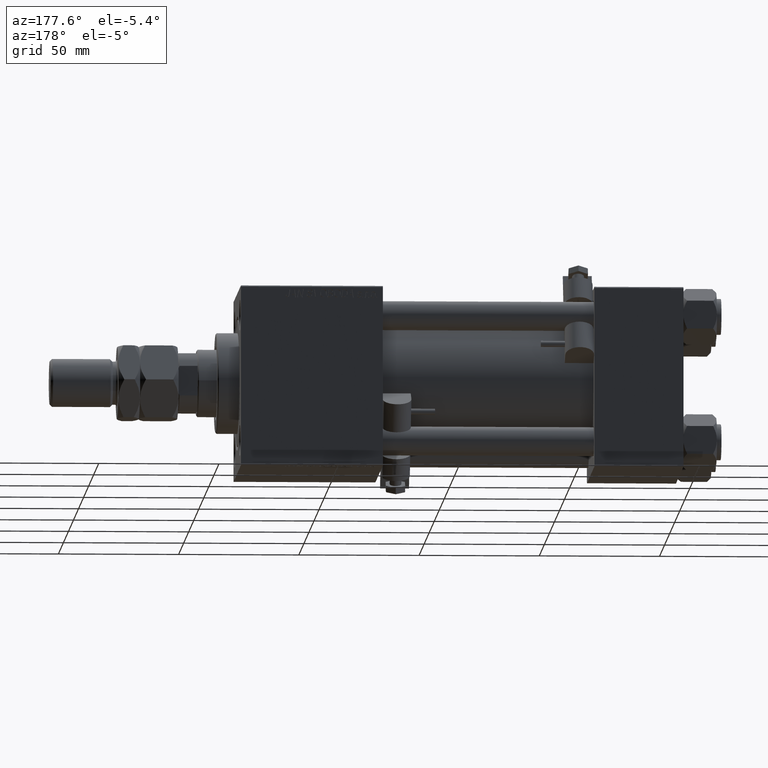
[diagram: clean part render]
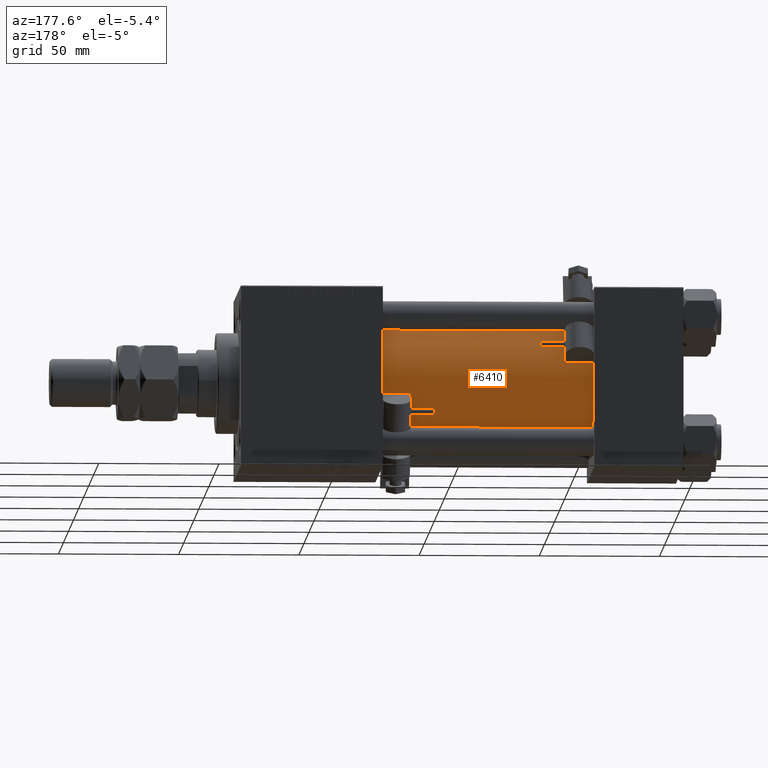
[diagram: same view with one face highlighted and labeled with its STEP entity id]
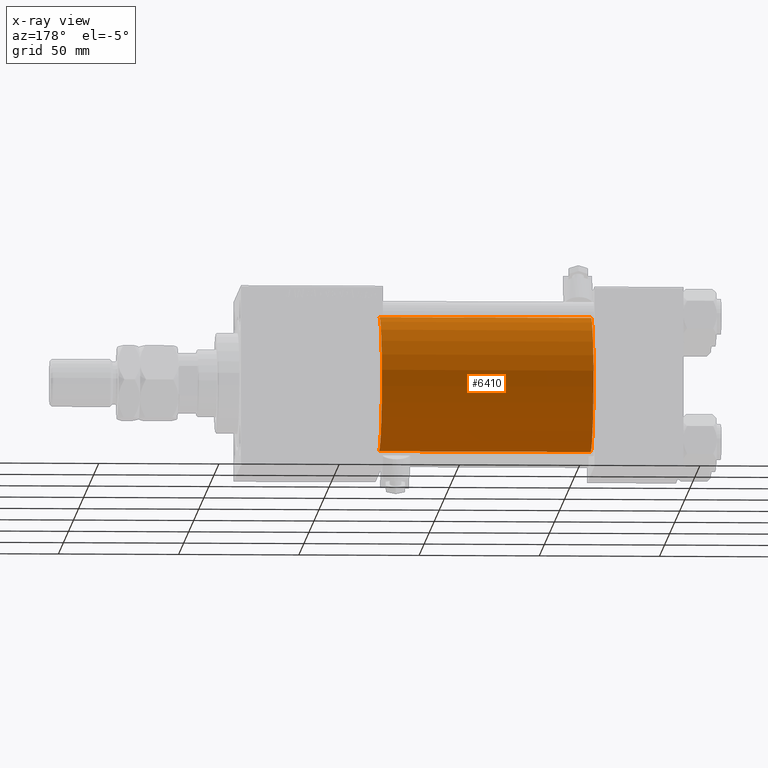
[diagram: x-ray of the same camera — body ghosted, the highlighted face saturated]
A machine part, auxiliary view. The second image highlights one B-rep face of the part: STEP entity #6410.
The next image is the same camera in x-ray: the body ghosted, the highlighted face saturated — about 0% of this face is hidden behind the body in this view.
In plain terms, the highlighted cylindrical surface (partial cylindrical patch) has radius 28 mm, axis along (-1, -0, -0).
Its self-contained STEP definition (entity closure, byte-faithful):
#200 = AXIS2_PLACEMENT_3D ( 'NONE', #15209, #51823, #14955 ) ;
#511 = EDGE_CURVE ( 'NONE', #8833, #23505, #14686, .T. ) ;
#1293 = VERTEX_POINT ( 'NONE', #12277 ) ;
#1433 = CYLINDRICAL_SURFACE ( 'NONE', #43821, 28.00000000000000000 ) ;
#1624 = LINE ( 'NONE', #46776, #46097 ) ;
#1760 = CARTESIAN_POINT ( 'NONE',  ( 37.00000000000000711, -2.602085213965210642E-15, 28.00000000000000000 ) ) ;
#6410 = ADVANCED_FACE ( 'NONE', ( #34800 ), #1433, .T. ) ;
#7237 = ORIENTED_EDGE ( 'NONE', *, *, #511, .T. ) ;
#8833 = VERTEX_POINT ( 'NONE', #24154 ) ;
#8995 = ORIENTED_EDGE ( 'NONE', *, *, #31039, .F. ) ;
#9457 = DIRECTION ( 'NONE',  ( -1.000000000000000000, -0.000000000000000000, -0.000000000000000000 ) ) ;
#10186 = VECTOR ( 'NONE', #16033, 1000.000000000000000 ) ;
#12160 = ORIENTED_EDGE ( 'NONE', *, *, #45594, .T. ) ;
#12277 = CARTESIAN_POINT ( 'NONE',  ( 125.0000000000000000, 8.269258236473784371E-16, -28.00000000000000000 ) ) ;
#14440 = DIRECTION ( 'NONE',  ( -1.000000000000000000, -0.000000000000000000, -0.000000000000000000 ) ) ;
#14686 = CIRCLE ( 'NONE', #200, 28.00000000000000000 ) ;
#14811 = CARTESIAN_POINT ( 'NONE',  ( 125.0000000000000000, -2.602085213965210642E-15, 0.000000000000000000 ) ) ;
#14955 = DIRECTION ( 'NONE',  ( 0.000000000000000000, 0.000000000000000000, 1.000000000000000000 ) ) ;
#15209 = CARTESIAN_POINT ( 'NONE',  ( 37.00000000000000711, -2.602085213965210642E-15, 0.000000000000000000 ) ) ;
#16033 = DIRECTION ( 'NONE',  ( -1.000000000000000000, -0.000000000000000000, -0.000000000000000000 ) ) ;
#17984 = CARTESIAN_POINT ( 'NONE',  ( 125.0000000000000000, -2.602085213965210642E-15, 0.000000000000000000 ) ) ;
#20569 = LINE ( 'NONE', #32326, #10186 ) ;
#22328 = AXIS2_PLACEMENT_3D ( 'NONE', #14811, #51152, #42591 ) ;
#23505 = VERTEX_POINT ( 'NONE', #1760 ) ;
#24154 = CARTESIAN_POINT ( 'NONE',  ( 37.00000000000000711, 8.269258236473784371E-16, -28.00000000000000000 ) ) ;
#24167 = VERTEX_POINT ( 'NONE', #40752 ) ;
#24841 = ORIENTED_EDGE ( 'NONE', *, *, #50062, .F. ) ;
#31039 = EDGE_CURVE ( 'NONE', #1293, #24167, #41126, .T. ) ;
#32326 = CARTESIAN_POINT ( 'NONE',  ( 125.0000000000000000, 8.269258236473784371E-16, -28.00000000000000000 ) ) ;
#33028 = EDGE_LOOP ( 'NONE', ( #8995, #12160, #7237, #24841 ) ) ;
#34800 = FACE_OUTER_BOUND ( 'NONE', #33028, .T. ) ;
#40752 = CARTESIAN_POINT ( 'NONE',  ( 125.0000000000000000, -2.602085213965210642E-15, 28.00000000000000000 ) ) ;
#41126 = CIRCLE ( 'NONE', #22328, 28.00000000000000000 ) ;
#42591 = DIRECTION ( 'NONE',  ( 0.000000000000000000, 0.000000000000000000, -1.000000000000000000 ) ) ;
#43104 = DIRECTION ( 'NONE',  ( 0.000000000000000000, 0.000000000000000000, 1.000000000000000000 ) ) ;
#43821 = AXIS2_PLACEMENT_3D ( 'NONE', #17984, #9457, #43104 ) ;
#45594 = EDGE_CURVE ( 'NONE', #1293, #8833, #20569, .T. ) ;
#46097 = VECTOR ( 'NONE', #14440, 1000.000000000000000 ) ;
#46776 = CARTESIAN_POINT ( 'NONE',  ( 125.0000000000000000, -2.602085213965210642E-15, 28.00000000000000000 ) ) ;
#50062 = EDGE_CURVE ( 'NONE', #24167, #23505, #1624, .T. ) ;
#51152 = DIRECTION ( 'NONE',  ( 1.000000000000000000, 0.000000000000000000, 0.000000000000000000 ) ) ;
#51823 = DIRECTION ( 'NONE',  ( 1.000000000000000000, -0.000000000000000000, 0.000000000000000000 ) ) ;